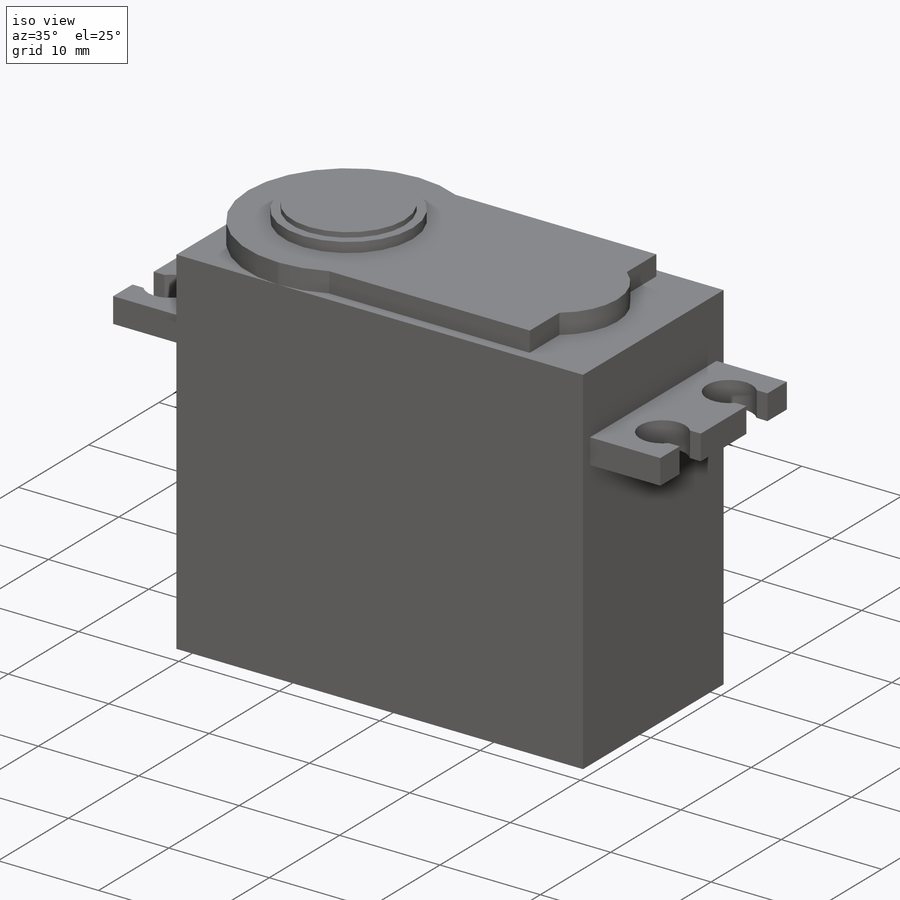
[diagram: iso view]
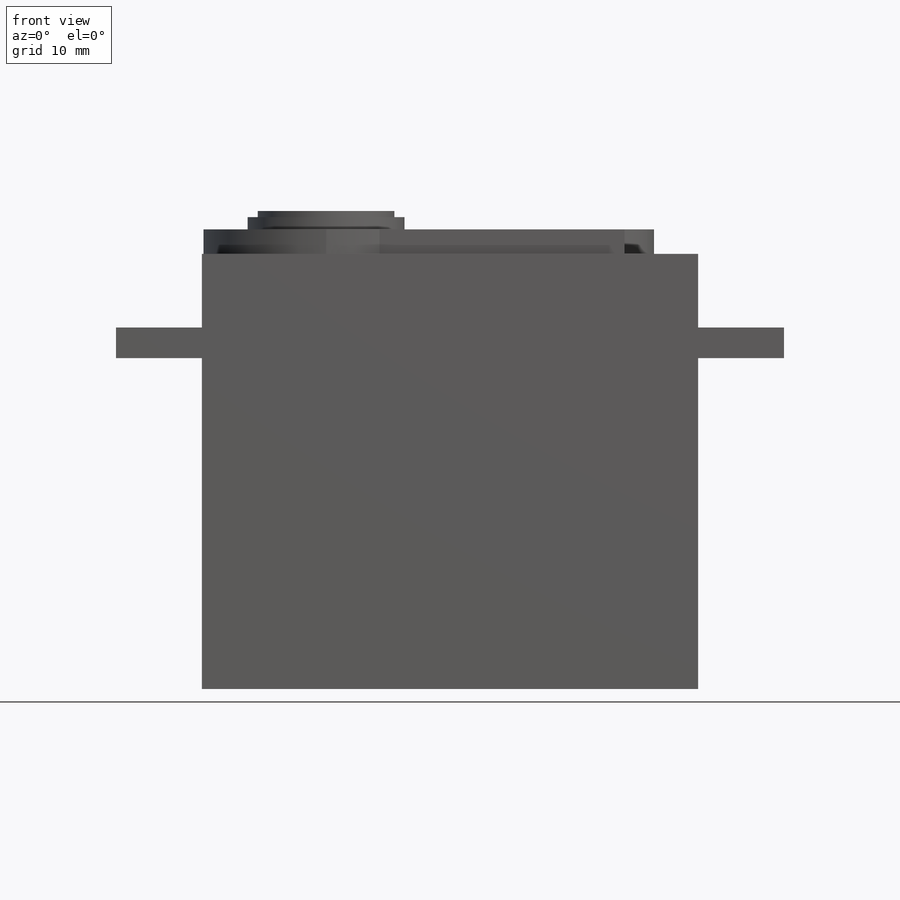
[diagram: front view]
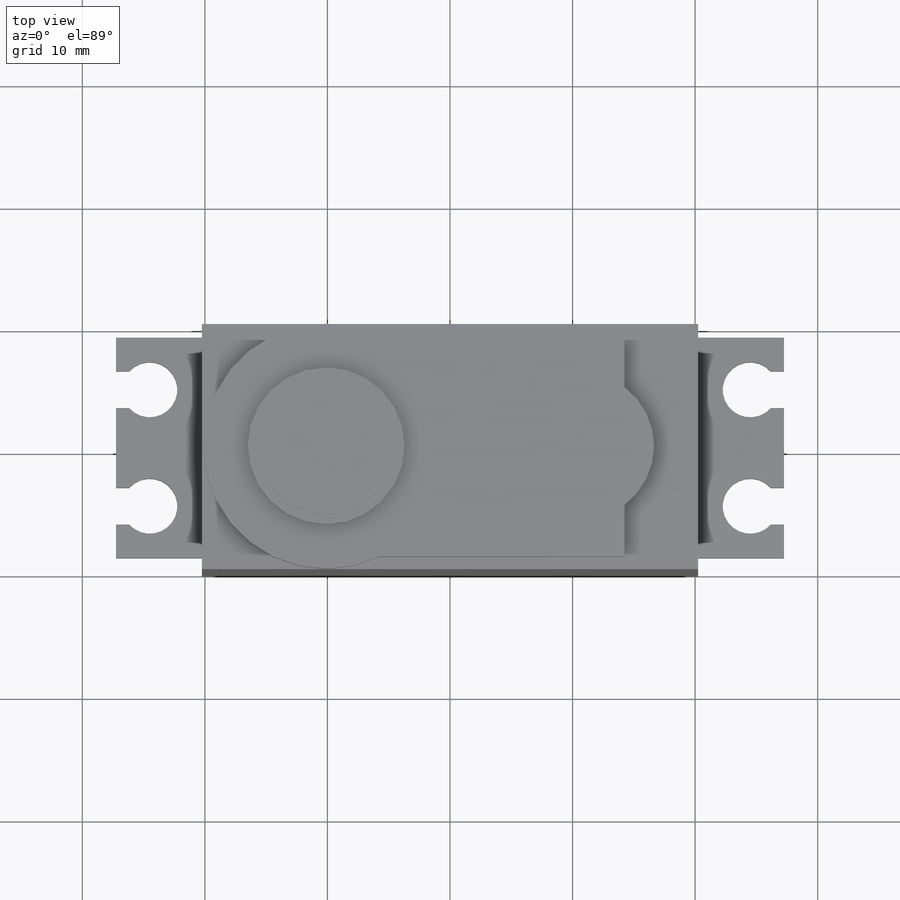
[diagram: top view]
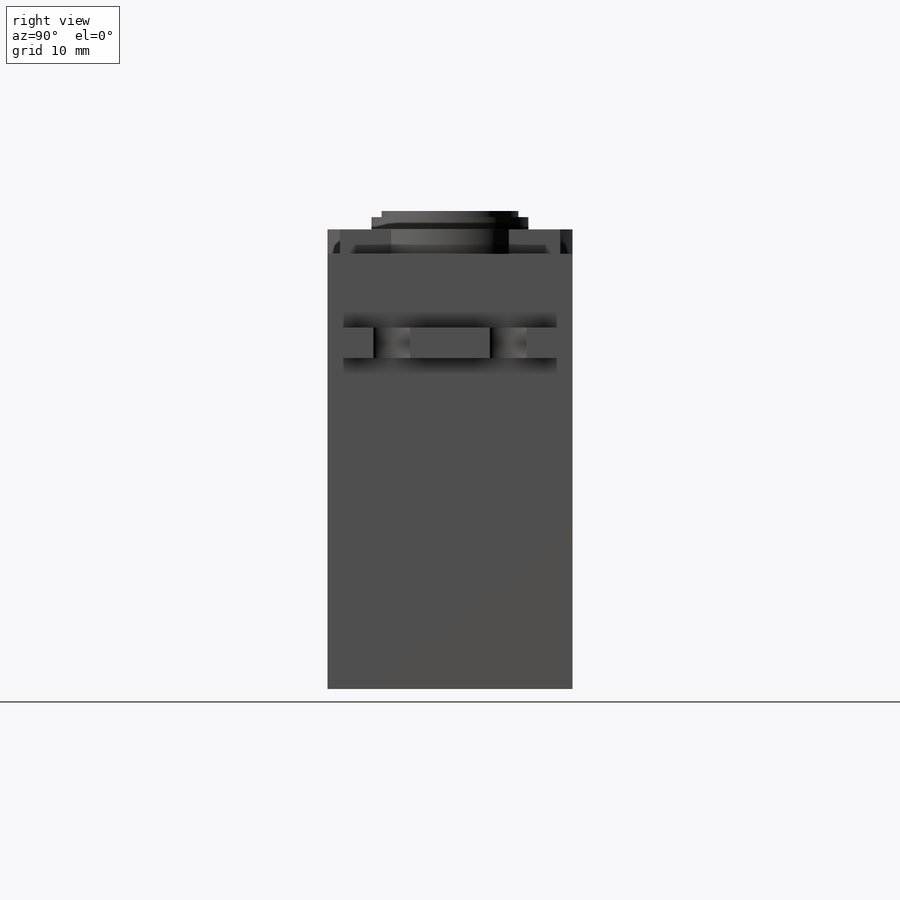
[diagram: right view]
SOLIDWORKS PART (.sldprt)
format: sldprt  version: not decoded by parser v0  size: 248,320 bytes
history: native  units: mm
features: sketch x5, extrude x5, mirror x2, material x1, plane x1 (+11 scaffold rows collapsed)
feature tree (25):
  scaffold x11  (default folders/planes/origin — collapsed)
  material  "Material <not specified>"
  sketch  "Sketch1"  dims[D1=20.0mm D2=40.5mm]
  extrude  "Boss-Extrude1"  Depth=35.5mm
  sketch  "Sketch2"  dims[c1.D1=20.0mm c1.D3=10.0mm c2.D1=1.0mm c2.D2=1.0mm c2.D3=4.2mm c2.D4=3.6mm c2.D5=20.0mm c2.D6=6.0mm]
  extrude  "Boss-Extrude2"  Depth=2mm
  sketch  "Sketch3"  dims[D1=12.8mm]
  extrude  "Boss-Extrude3"  Depth=1mm
  sketch  "Sketch4"  dims[D1=11.15mm]
  extrude  "Boss-Extrude4"  Depth=0.5mm
  plane  "Plane1"  Offset=6mm
  sketch  "Sketch5"  dims[c1.D4=4.5mm c1.D5=4.0mm c1.D1=1.0mm c1.D2=1.0mm c1.D3=7.0mm c2.D4=5.3mm c2.D5=4.4mm c2.D6=7.0mm c2.D7=1.0mm c3.D5=~3.920091mm c3.D6=~1.920091mm c4.D5=2.0mm c4.D6=3.0mm c4.D2=9.0mm c4.D7=2.0mm]
  extrude  "Boss-Extrude5"  Depth=2.5mm
  mirror  "Mirror1"
  mirror  "Mirror2"
decode coverage: 10 of 12 modeling features carry decoded parameters
note: ~ marks probable driven/reference dimensions
note: suppression state not decoded; provenance and decode notes live in map.json
